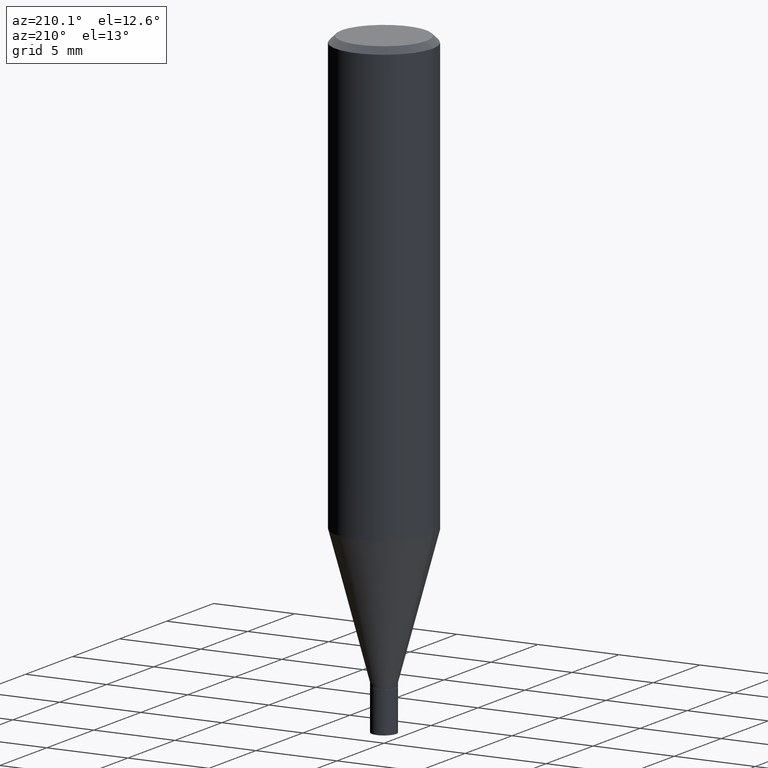
[diagram: clean part render]
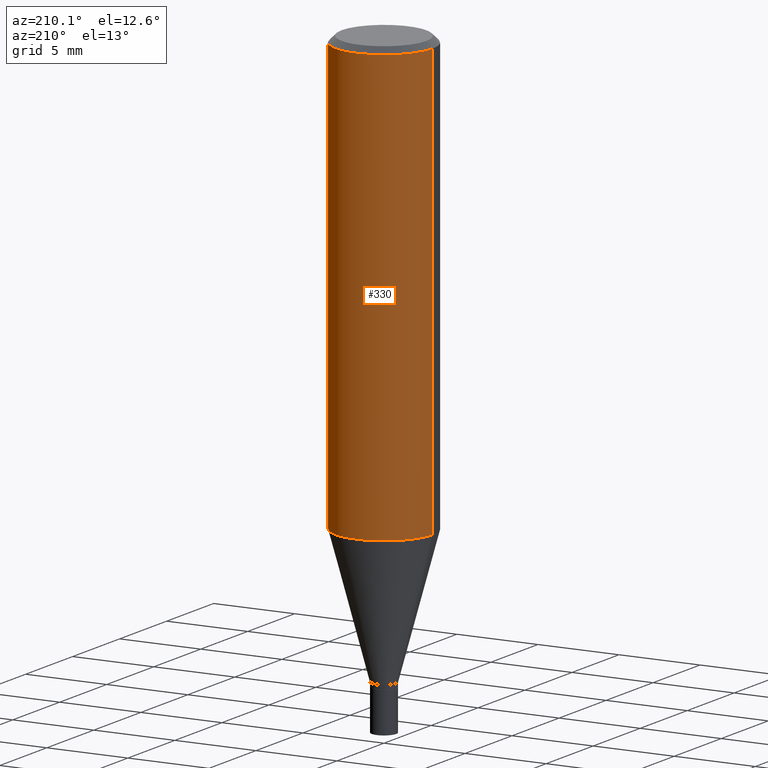
[diagram: same view with one face highlighted and labeled with its STEP entity id]
A machine part, auxiliary view. The second image highlights one B-rep face of the part: STEP entity #330.
In plain terms, the highlighted cylindrical surface (partial cylindrical patch) has radius 2.9997 mm, axis along (-0, 0, 1).
Its self-contained STEP definition (entity closure, byte-faithful):
#10 = CARTESIAN_POINT ( 'NONE',  ( -0.1180999999999999966, -1.039487525583773150E-15, -0.01499999999999999944 ) ) ;
#36 = DIRECTION ( 'NONE',  ( 1.000000000000000000, -6.982962677686266711E-15, 4.876176775795936353E-29 ) ) ;
#37 = DIRECTION ( 'NONE',  ( 1.000000000000000000, -6.982962677686265133E-15, 0.000000000000000000 ) ) ;
#56 = CYLINDRICAL_SURFACE ( 'NONE', #281, 0.1180999999999999966 ) ;
#73 = ORIENTED_EDGE ( 'NONE', *, *, #319, .T. ) ;
#79 = AXIS2_PLACEMENT_3D ( 'NONE', #195, #144, #37 ) ;
#90 = LINE ( 'NONE', #457, #387 ) ;
#103 = CIRCLE ( 'NONE', #116, 0.1180999999999999966 ) ;
#116 = AXIS2_PLACEMENT_3D ( 'NONE', #294, #439, #334 ) ;
#118 = VECTOR ( 'NONE', #249, 39.37007874015748143 ) ;
#130 = DIRECTION ( 'NONE',  ( -2.445468806185136877E-29, 3.491481338843145188E-15, 1.000000000000000000 ) ) ;
#144 = DIRECTION ( 'NONE',  ( -2.445468806185136597E-29, 3.491481338843145583E-15, 1.000000000000000000 ) ) ;
#169 = ORIENTED_EDGE ( 'NONE', *, *, #177, .F. ) ;
#174 = EDGE_CURVE ( 'NONE', #234, #441, #325, .T. ) ;
#177 = EDGE_CURVE ( 'NONE', #237, #336, #103, .T. ) ;
#195 = CARTESIAN_POINT ( 'NONE',  ( 2.594952735774397508E-29, -3.704904772950256010E-15, -1.061126900989774580 ) ) ;
#208 = CARTESIAN_POINT ( 'NONE',  ( 0.1180999999999999966, -8.246878922347480654E-16, 5.758764772215000440E-30 ) ) ;
#234 = VERTEX_POINT ( 'NONE', #393 ) ;
#237 = VERTEX_POINT ( 'NONE', #385 ) ;
#245 = CARTESIAN_POINT ( 'NONE',  ( -0.1180999999999999689, -2.865753802017576629E-15, -1.061126900989774580 ) ) ;
#246 = CARTESIAN_POINT ( 'NONE',  ( 0.000000000000000000, 0.000000000000000000, 0.000000000000000000 ) ) ;
#249 = DIRECTION ( 'NONE',  ( -2.445468806185136877E-29, 3.491481338843145188E-15, 1.000000000000000000 ) ) ;
#277 = FACE_OUTER_BOUND ( 'NONE', #431, .T. ) ;
#281 = AXIS2_PLACEMENT_3D ( 'NONE', #246, #363, #36 ) ;
#294 = CARTESIAN_POINT ( 'NONE',  ( 3.668203209277705088E-31, -5.237222008264718399E-17, -0.01499999999999999944 ) ) ;
#319 = EDGE_CURVE ( 'NONE', #441, #336, #90, .T. ) ;
#325 = CIRCLE ( 'NONE', #79, 0.1180999999999999966 ) ;
#330 = ADVANCED_FACE ( 'NONE', ( #277 ), #56, .T. ) ;
#334 = DIRECTION ( 'NONE',  ( 1.000000000000000000, -6.982962677686266711E-15, 0.000000000000000000 ) ) ;
#336 = VERTEX_POINT ( 'NONE', #10 ) ;
#358 = ORIENTED_EDGE ( 'NONE', *, *, #174, .T. ) ;
#363 = DIRECTION ( 'NONE',  ( -2.445468806185136597E-29, 3.491481338843145583E-15, 1.000000000000000000 ) ) ;
#385 = CARTESIAN_POINT ( 'NONE',  ( 0.1180999999999999966, -8.770601123173952432E-16, -0.01499999999999999944 ) ) ;
#387 = VECTOR ( 'NONE', #130, 39.37007874015748143 ) ;
#391 = LINE ( 'NONE', #208, #118 ) ;
#393 = CARTESIAN_POINT ( 'NONE',  ( 0.1180999999999999689, -4.529592665185003484E-15, -1.061126900989774580 ) ) ;
#431 = EDGE_LOOP ( 'NONE', ( #358, #73, #169, #464 ) ) ;
#439 = DIRECTION ( 'NONE',  ( -2.445468806185136597E-29, 3.491481338843145583E-15, 1.000000000000000000 ) ) ;
#441 = VERTEX_POINT ( 'NONE', #245 ) ;
#457 = CARTESIAN_POINT ( 'NONE',  ( -0.1180999999999999966, 8.391509709326782957E-16, -5.809262341591043784E-30 ) ) ;
#464 = ORIENTED_EDGE ( 'NONE', *, *, #466, .F. ) ;
#466 = EDGE_CURVE ( 'NONE', #234, #237, #391, .T. ) ;